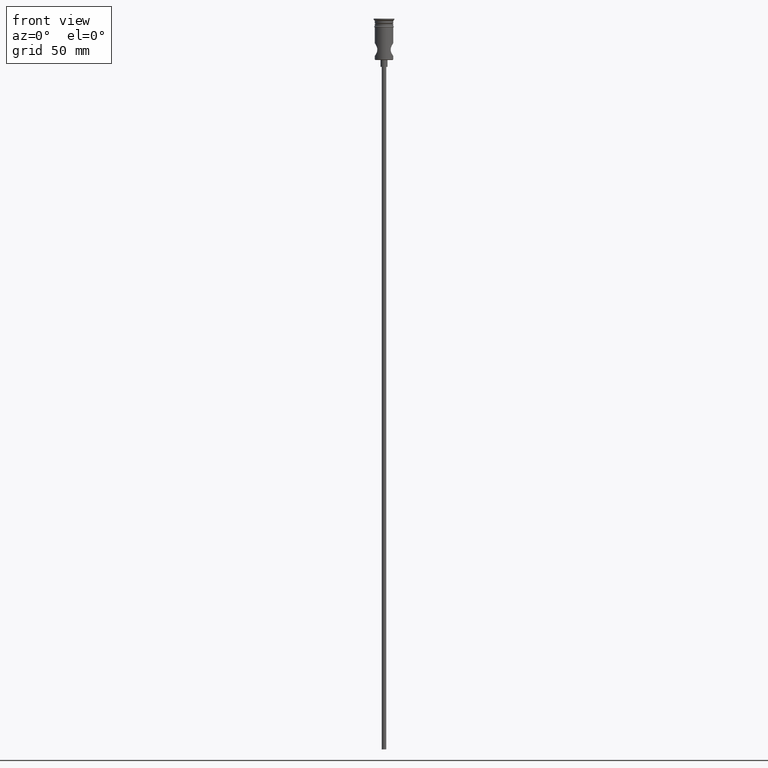
[diagram: clean part render]
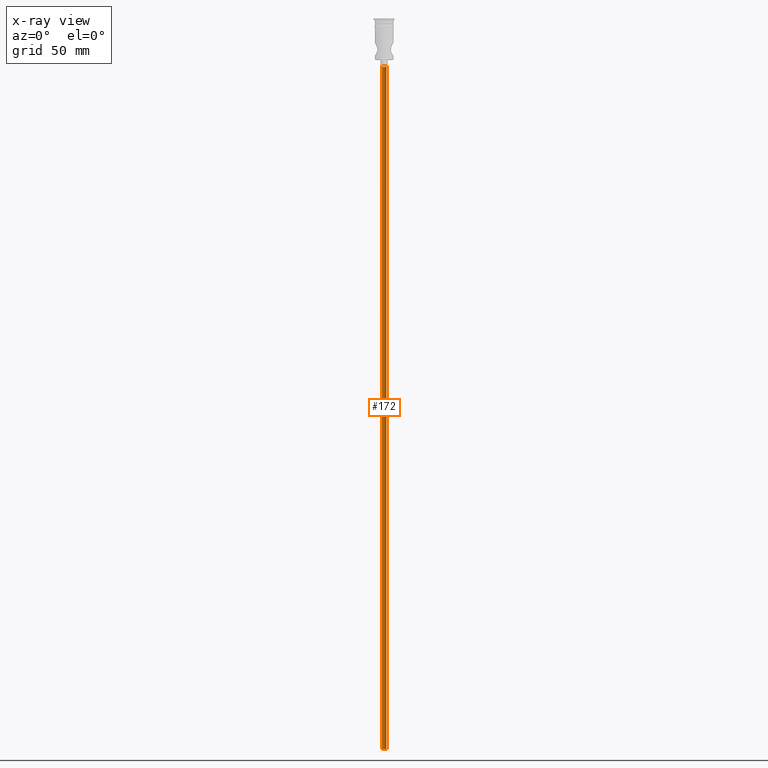
[diagram: x-ray — body ghosted, one internal face saturated and labeled with its STEP entity id]
A machine part, front view, then the same camera in x-ray: the body is ghosted and one INTERNAL B-rep face — a face not visible from any outside direction — is saturated and labeled: STEP entity #172.
In plain terms, the highlighted cylindrical surface (edge-blend (fillet) strip) has radius 1 mm, axis along (-0, -0, 1).
Its self-contained STEP definition (entity closure, byte-faithful):
#154 = ORIENTED_EDGE ( 'NONE', *, *, #1222, .F. ) ;
#161 = CIRCLE ( 'NONE', #868, 0.9999999999999997780 ) ;
#168 = FACE_OUTER_BOUND ( 'NONE', #569, .T. ) ;
#172 = ADVANCED_FACE ( 'NONE', ( #168 ), #273, .T. ) ;
#174 = DIRECTION ( 'NONE',  ( -0.000000000000000000, -0.000000000000000000, 1.000000000000000000 ) ) ;
#217 = ORIENTED_EDGE ( 'NONE', *, *, #566, .T. ) ;
#233 = DIRECTION ( 'NONE',  ( -0.000000000000000000, -0.000000000000000000, 1.000000000000000000 ) ) ;
#256 = CARTESIAN_POINT ( 'NONE',  ( 0.9999999999999997780, 0.000000000000000000, -318.0000000000000000 ) ) ;
#273 = CYLINDRICAL_SURFACE ( 'NONE', #275, 0.9999999999999997780 ) ;
#275 = AXIS2_PLACEMENT_3D ( 'NONE', #1250, #174, #694 ) ;
#280 = VECTOR ( 'NONE', #233, 1000.000000000000000 ) ;
#331 = CARTESIAN_POINT ( 'NONE',  ( 0.9999999999999997780, 0.000000000000000000, -20.99999999999999645 ) ) ;
#352 = EDGE_CURVE ( 'NONE', #423, #1263, #161, .T. ) ;
#362 = LINE ( 'NONE', #256, #280 ) ;
#378 = ORIENTED_EDGE ( 'NONE', *, *, #352, .F. ) ;
#423 = VERTEX_POINT ( 'NONE', #1193 ) ;
#488 = LINE ( 'NONE', #793, #893 ) ;
#566 = EDGE_CURVE ( 'NONE', #423, #746, #488, .T. ) ;
#569 = EDGE_LOOP ( 'NONE', ( #378, #217, #826, #154 ) ) ;
#581 = CARTESIAN_POINT ( 'NONE',  ( 0.9999999999999997780, 0.000000000000000000, -318.0000000000000000 ) ) ;
#691 = CIRCLE ( 'NONE', #717, 0.9999999999999997780 ) ;
#694 = DIRECTION ( 'NONE',  ( 1.000000000000000000, 0.000000000000000000, 0.000000000000000000 ) ) ;
#717 = AXIS2_PLACEMENT_3D ( 'NONE', #986, #1073, #840 ) ;
#746 = VERTEX_POINT ( 'NONE', #943 ) ;
#793 = CARTESIAN_POINT ( 'NONE',  ( -0.9999999999999997780, 1.224646799147352961E-16, -318.0000000000000000 ) ) ;
#826 = ORIENTED_EDGE ( 'NONE', *, *, #1085, .T. ) ;
#840 = DIRECTION ( 'NONE',  ( -1.000000000000000000, 0.000000000000000000, 0.000000000000000000 ) ) ;
#868 = AXIS2_PLACEMENT_3D ( 'NONE', #968, #1289, #1070 ) ;
#893 = VECTOR ( 'NONE', #922, 1000.000000000000000 ) ;
#922 = DIRECTION ( 'NONE',  ( -0.000000000000000000, -0.000000000000000000, 1.000000000000000000 ) ) ;
#943 = CARTESIAN_POINT ( 'NONE',  ( -0.9999999999999997780, 1.224646799147352961E-16, -20.99999999999999645 ) ) ;
#968 = CARTESIAN_POINT ( 'NONE',  ( 0.000000000000000000, 0.000000000000000000, -318.0000000000000000 ) ) ;
#986 = CARTESIAN_POINT ( 'NONE',  ( 0.000000000000000000, 0.000000000000000000, -20.99999999999999645 ) ) ;
#1025 = VERTEX_POINT ( 'NONE', #331 ) ;
#1070 = DIRECTION ( 'NONE',  ( -1.000000000000000000, 0.000000000000000000, 0.000000000000000000 ) ) ;
#1073 = DIRECTION ( 'NONE',  ( 0.000000000000000000, 0.000000000000000000, -1.000000000000000000 ) ) ;
#1085 = EDGE_CURVE ( 'NONE', #746, #1025, #691, .T. ) ;
#1193 = CARTESIAN_POINT ( 'NONE',  ( -0.9999999999999997780, 1.224646799147352961E-16, -318.0000000000000000 ) ) ;
#1222 = EDGE_CURVE ( 'NONE', #1263, #1025, #362, .T. ) ;
#1250 = CARTESIAN_POINT ( 'NONE',  ( 0.000000000000000000, 0.000000000000000000, -318.0000000000000000 ) ) ;
#1263 = VERTEX_POINT ( 'NONE', #581 ) ;
#1289 = DIRECTION ( 'NONE',  ( 0.000000000000000000, 0.000000000000000000, -1.000000000000000000 ) ) ;